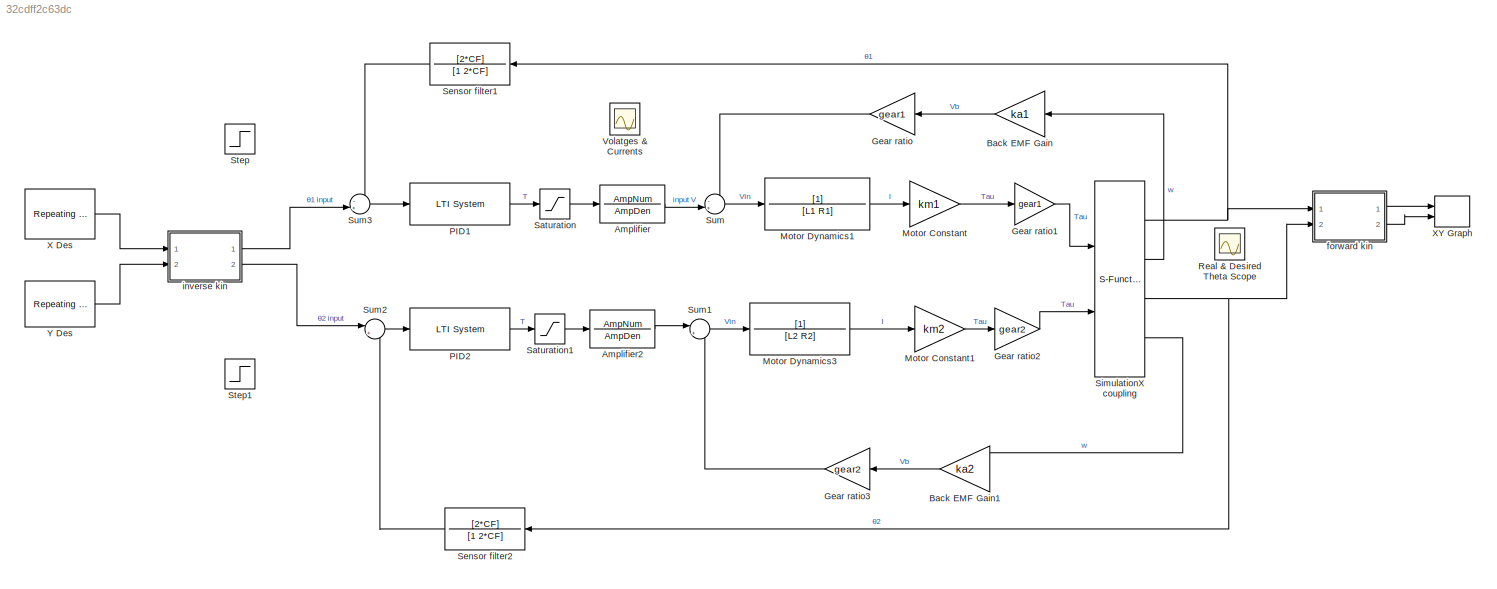
MODEL slx_32cdff2c63dc
KIND model
CONFIG AbsTol = auto
CONFIG EnableMultiTasking = off
CONFIG FixedStep = auto
CONFIG MaxStep = auto
CONFIG MinStep = auto
CONFIG RelTol = 1e-3
CONFIG SampleTimeConstraint = Unconstrained
CONFIG SolverName = VariableStepAuto
CONFIG StartTime = 0.0
CONFIG StopTime = 6
BLOCK [TransferFcn] Amplifier
  Denominator = AmpDen
  Numerator = AmpNum
BLOCK [TransferFcn] Amplifier2
  Denominator = AmpDen
  Numerator = AmpNum
BLOCK [Gain] Back EMF Gain
  Gain = ka1
BLOCK [Gain] Back EMF Gain1
  Gain = ka2
BLOCK [Gain] Gear ratio
  Gain = gear1
BLOCK [Gain] Gear ratio1
  Gain = gear1
BLOCK [Gain] Gear ratio2
  Gain = gear2
BLOCK [Gain] Gear ratio3
  Gain = gear2
BLOCK [Gain] Motor Constant
  Gain = km1
BLOCK [Gain] Motor Constant1
  Gain = km2
BLOCK [TransferFcn] Motor Dynamics1
  Denominator = [L1 R1]
BLOCK [TransferFcn] Motor Dynamics3
  Denominator = [L2 R2]
BLOCK [Reference] PID1  REF=cstblocks/LTI System
  Ports = [1, 1]
  SourceBlock = cstblocks/LTI System
  SourceProductBaseCode = CT
  SourceType = LTI Block
BLOCK [Reference] PID2  REF=cstblocks/LTI System
  Ports = [1, 1]
  SourceBlock = cstblocks/LTI System
  SourceProductBaseCode = CT
  SourceType = LTI Block
BLOCK [Scope] Real & Desired Theta Scope
  Floating = on
  NumInputPorts = 1
  Ports = []
  ScopeSpecificationString = Simulink.scopes.TimeScopeBlockCfg('CurrentConfiguration', extmgr.ConfigurationSet(extmgr.Configuration('Core','General UI',true),extmgr.Configuration('Core','Source UI',true),extmgr.Configuration('Sources','WiredSimulink',true,'DataLoggingVariableName','ScopeData1'),extmgr.Configuration('Visuals','Time Domain',true,'SerializedDisplays',{struct('MinYLimReal','-1.83748','MaxYLimReal','2.737','YLabel...<+1556ch>
BLOCK [Saturate] Saturation
  LowerLimit = -5
  UpperLimit = 5
BLOCK [Saturate] Saturation1
  LowerLimit = -5
  UpperLimit = 5
BLOCK [TransferFcn] Sensor filter1
  Denominator = [1 2*CF]
  Numerator = [2*CF]
BLOCK [TransferFcn] Sensor filter2
  Denominator = [1 2*CF]
  Numerator = [2*CF]
BLOCK [S-Function] SimulationX coupling
  EnableBusSupport = off
  FunctionName = ITIFct2
  Parameters = ip, port, ts, nIn, nOut
  Ports = [2, 4]
  SFcnIsStateOwnerBlock = off
  SFunctionDeploymentMode = off
BLOCK [Step] Step
  After = 0
  SampleTime = 0
  Time = 0
BLOCK [Step] Step1
  After = pi/2
  SampleTime = 0
  Time = 0
BLOCK [Sum] Sum
  Inputs = -+|
  NameLocation = top
  Ports = [2, 1]
BLOCK [Sum] Sum1
  Inputs = |+-
  Ports = [2, 1]
BLOCK [Sum] Sum2
  Inputs = |+-
  Ports = [2, 1]
BLOCK [Sum] Sum3
  Inputs = -+|
  Ports = [2, 1]
BLOCK [Scope] Volatges & Currents
  Floating = on
  NumInputPorts = 1
  Ports = []
  ScopeSpecificationString = Simulink.scopes.TimeScopeBlockCfg('CurrentConfiguration', extmgr.ConfigurationSet(extmgr.Configuration('Core','General UI',true),extmgr.Configuration('Core','Source UI',true),extmgr.Configuration('Sources','WiredSimulink',true,'DataLoggingVariableName','ScopeData1'),extmgr.Configuration('Visuals','Time Domain',true,'SerializedDisplays',{struct('MinYLimReal','-7.85967','MaxYLimReal','8.76706','YLab...<+1482ch>
BLOCK [Reference] X Des  REF=simulink/Sources/Repeating
Sequence
Interpolated
  Ports = [0, 1]
  SourceBlock = simulink/Sources/Repeating\nSequence\nInterpolated
  SourceProductBaseCode = SL
  SourceType = Repeating Sequence Interpolated
BLOCK [Record] XY Graph
  CompatibilityTag = XY
  FileSettingsInternal = {"entries":[{"content":{"excelSettings":{"content":{},"type":"Streamout.ExcelSettings"}},"type":"Streamout.FileSettingStorage","uuid":"5730b3b8-f6c0-4de6-9585-8223710bef99"}],"packageUris":["http://schema.mathworks.com/mf0/streamout_blocks/R2020a"],"version":"1.0"}
  Filename = XYrecording.mldatx
  Layout = [1 2]
  Ports = [2]
  SignalsInternal = {"entries":[{"content":{"signals":[{"content":{"blockPath":["draft_arm_model/XY Graph"],"channel":[],"dimensions":[1],"domain":"draft_arm_model/XY Graph","lineColor":"#ff13a6","plots":[],"port":1,"sid":[""],"signalID":17593,"signalName":"forward kin:1"},"type":"RecordBlkView.Signal","uuid":"db695707-a85c-4d7a-a7b3-b8167e0eb5da"},{"content":{"blockPath":["draft_arm_model/XY Graph"],"channel":[],"di...<+403ch>
  VisualizationBindings = {"xyplotplugin":{"info":[{"series":[],"subplotID":1}]}}
BLOCK [Reference] Y Des  REF=simulink/Sources/Repeating
Sequence
Interpolated
  Ports = [0, 1]
  SourceBlock = simulink/Sources/Repeating\nSequence\nInterpolated
  SourceProductBaseCode = SL
  SourceType = Repeating Sequence Interpolated
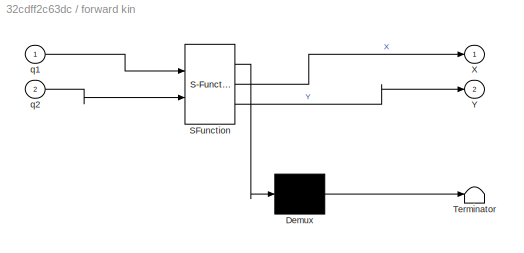
BLOCK [SubSystem] forward kin
  ErrorFcn = Stateflow.Translate.translate
  PermitHierarchicalResolution = ExplicitOnly
  Ports = [2, 2]
  RequestExecContextInheritance = off
  SFBlockType = MATLAB Function
  TreatAsAtomicUnit = on
BLOCK [Demux] forward kin/ Demux 
  Outputs = 1
  Ports = [1, 1]
BLOCK [S-Function] forward kin/ SFunction 
  EnableBusSupport = on
  FunctionName = sf_sfun
  PortCounts = [2 3]
  Ports = [2, 3]
  SFcnIsStateOwnerBlock = off
  SFunctionDeploymentMode = off
  Tag = Stateflow S-Function 1
BLOCK [Terminator] forward kin/ Terminator 
BLOCK [Outport] forward kin/X
BLOCK [Outport] forward kin/Y
  Port = 2
BLOCK [Inport] forward kin/q1
BLOCK [Inport] forward kin/q2
  Port = 2
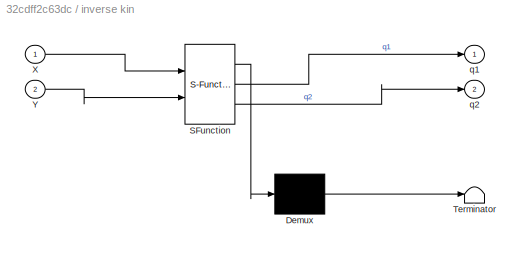
BLOCK [SubSystem] inverse kin
  ErrorFcn = Stateflow.Translate.translate
  PermitHierarchicalResolution = ExplicitOnly
  Ports = [2, 2]
  RequestExecContextInheritance = off
  SFBlockType = MATLAB Function
  TreatAsAtomicUnit = on
BLOCK [Demux] inverse kin/ Demux 
  Outputs = 1
  Ports = [1, 1]
BLOCK [S-Function] inverse kin/ SFunction 
  EnableBusSupport = on
  FunctionName = sf_sfun
  PortCounts = [2 3]
  Ports = [2, 3]
  SFcnIsStateOwnerBlock = off
  SFunctionDeploymentMode = off
  Tag = Stateflow S-Function 2
BLOCK [Terminator] inverse kin/ Terminator 
BLOCK [Inport] inverse kin/X
BLOCK [Inport] inverse kin/Y
  Port = 2
BLOCK [Outport] inverse kin/q1
BLOCK [Outport] inverse kin/q2
  Port = 2
LINE Amplifier2:1 -> Sum1:1
LINE Amplifier:1 -> Sum:2
LINE Back EMF Gain1:1 -> Gear ratio3:1
LINE Back EMF Gain:1 -> Gear ratio:1
LINE Gear ratio1:1 -> SimulationX coupling:1
LINE Gear ratio2:1 -> SimulationX coupling:2
LINE Gear ratio3:1 -> Sum1:2
LINE Gear ratio:1 -> Sum:1
LINE Motor Constant1:1 -> Gear ratio2:1
LINE Motor Constant:1 -> Gear ratio1:1
LINE Motor Dynamics1:1 -> Motor Constant:1
LINE Motor Dynamics3:1 -> Motor Constant1:1
LINE PID1:1 -> Saturation:1
LINE PID2:1 -> Saturation1:1
LINE Saturation1:1 -> Amplifier2:1
LINE Saturation:1 -> Amplifier:1
LINE Sensor filter1:1 -> Sum3:1
LINE Sensor filter2:1 -> Sum2:2
NET SimulationX coupling:1 -> Sensor filter1:1, forward kin:1
LINE SimulationX coupling:2 -> Back EMF Gain:1
NET SimulationX coupling:3 -> Sensor filter2:1, forward kin:2
LINE SimulationX coupling:4 -> Back EMF Gain1:1
LINE Sum1:1 -> Motor Dynamics3:1
LINE Sum2:1 -> PID2:1
LINE Sum3:1 -> PID1:1
LINE Sum:1 -> Motor Dynamics1:1
LINE X Des:1 -> inverse kin:1
LINE Y Des:1 -> inverse kin:2
LINE forward kin:1 -> XY Graph:1
LINE forward kin:2 -> XY Graph:2
LINE inverse kin:1 -> Sum3:2
LINE inverse kin:2 -> Sum2:1
note: NET lines group one-source signal fan-out (src -> all destinations, sorted); 1:1 wires keep LINE
CHART inverse kin states=1 transitions=1
  STATE_LABEL 'eML_blk_kernel()'
  STATE_LABEL 'SCRIPT:\nfunction [q1,q2] = xy2theta(X,Y)\n\n% Inputs X,Y should be in mm\n% Outputs q1, q2 are in rads\n\nL1 = 275;   % Arm 1 length (mm)\nL2 = 275;   % Arm 2 length (mm)\n\n% Elbow down position\nq1 = 2*atan((2*L1*Y - (- L1^4 + 2*L1^2*L2^2 + 2*L1^2*X^2 + 2*L1^2*Y^2 - L2^4 + 2*L2^2*X^2 + 2*L2^2*Y^2 - X^4 - 2*X^2*Y^2 - Y^4)^(1/2))/(L1^2 + 2*L1*X - L2^2 + X^2 + Y^2));\nq2 =  2*atan(((- L1^2 + 2*L1*L2 - L2^2 +...<+101ch>'
CHART forward kin states=1 transitions=1
  STATE_LABEL 'eML_blk_kernel()'
  STATE_LABEL 'SCRIPT:\nfunction [X,Y] = theta2xy(q1,q2)\n\nL1 = 275;\nL2 = 275;\n\nX = L1*cos(q1) + L2*cos(q1 + q2);\nY = L1*sin(q1) + L2*sin(q1 + q2);\n\nend\n'
CHART  states=0 transitions=0
CHART  states=0 transitions=0
